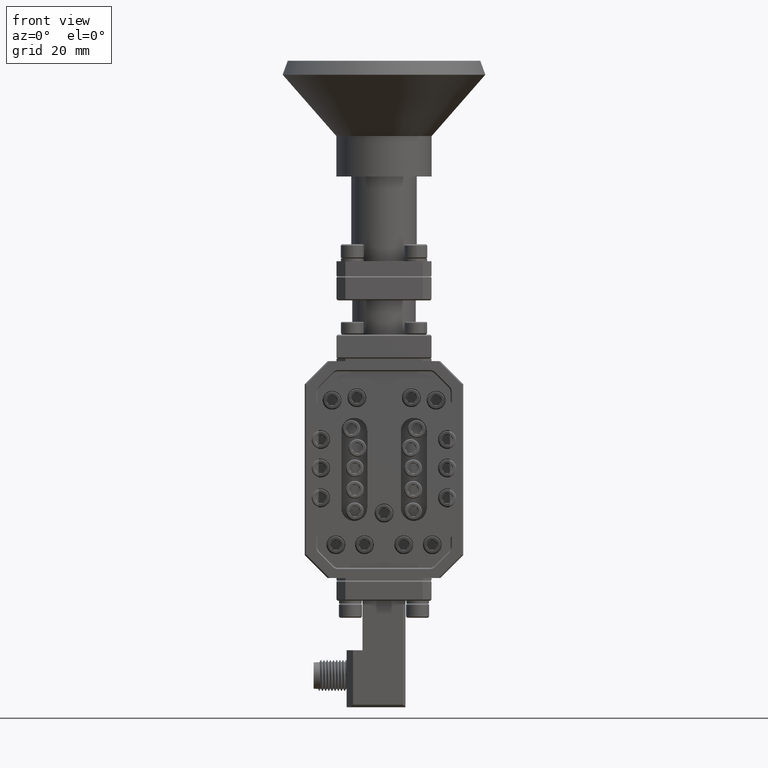
[diagram: clean part render]
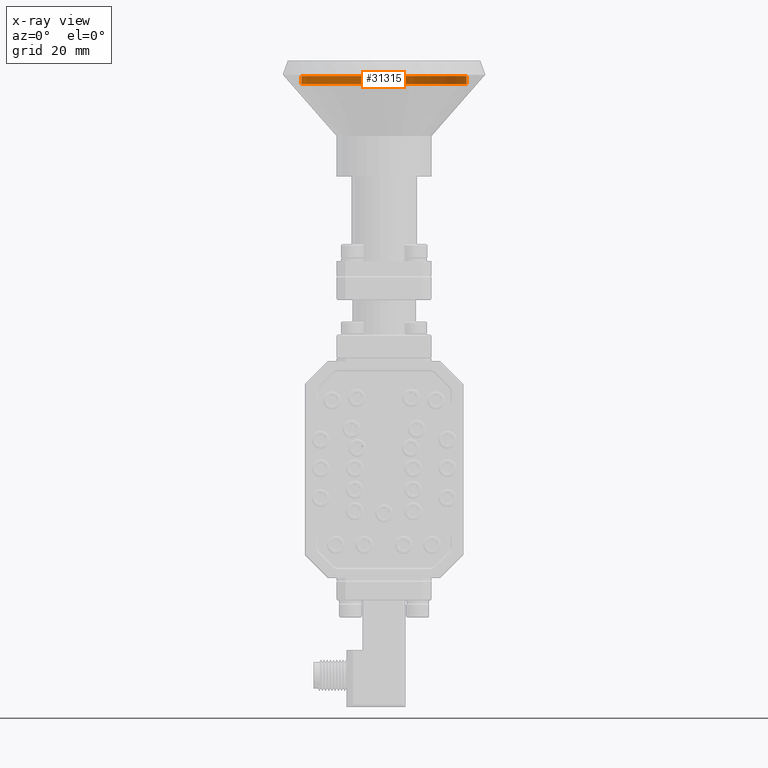
[diagram: x-ray — body ghosted, one internal face saturated and labeled with its STEP entity id]
A machine part, front view, then the same camera in x-ray: the body is ghosted and one INTERNAL B-rep face — a face not visible from any outside direction — is saturated and labeled: STEP entity #31315.
In plain terms, the highlighted cylindrical surface (partial cylindrical patch) has radius 16.5306 mm, axis along (0, 0, 1).
Its self-contained STEP definition (entity closure, byte-faithful):
#1759 = EDGE_CURVE ( 'NONE', #39162, #36241, #5583, .T. ) ;
#4193 = ORIENTED_EDGE ( 'NONE', *, *, #23320, .F. ) ;
#5324 = DIRECTION ( 'NONE',  ( 0.000000000000000000, 0.000000000000000000, 1.000000000000000000 ) ) ;
#5583 = LINE ( 'NONE', #58975, #26751 ) ;
#5765 = ORIENTED_EDGE ( 'NONE', *, *, #24763, .T. ) ;
#6958 = DIRECTION ( 'NONE',  ( 1.000000000000000000, 0.000000000000000000, -1.049400276994855732E-16 ) ) ;
#8186 = EDGE_LOOP ( 'NONE', ( #33963, #54190, #5765, #4193 ) ) ;
#11716 = CARTESIAN_POINT ( 'NONE',  ( 1.934627145451833015E-16, 0.000000000000000000, -0.1212570514218500872 ) ) ;
#12340 = VERTEX_POINT ( 'NONE', #57799 ) ;
#14551 = LINE ( 'NONE', #44055, #22086 ) ;
#19181 = CIRCLE ( 'NONE', #22218, 0.6508117192153302089 ) ;
#19401 = FACE_OUTER_BOUND ( 'NONE', #8186, .T. ) ;
#20074 = CIRCLE ( 'NONE', #33203, 0.6508117192153302089 ) ;
#22086 = VECTOR ( 'NONE', #5324, 39.37007874015748143 ) ;
#22218 = AXIS2_PLACEMENT_3D ( 'NONE', #11716, #31081, #26336 ) ;
#23320 = EDGE_CURVE ( 'NONE', #12340, #56259, #14551, .T. ) ;
#24763 = EDGE_CURVE ( 'NONE', #36241, #56259, #19181, .T. ) ;
#26336 = DIRECTION ( 'NONE',  ( -1.000000000000000000, 0.000000000000000000, 1.311750346243569603E-16 ) ) ;
#26751 = VECTOR ( 'NONE', #44310, 39.37007874015748143 ) ;
#29697 = CARTESIAN_POINT ( 'NONE',  ( -0.6508117192153299868, 7.970144887846400540E-17, -0.1838206156332456709 ) ) ;
#30152 = CARTESIAN_POINT ( 'NONE',  ( 1.858008876797097320E-16, 0.000000000000000000, -0.1838206156332457542 ) ) ;
#30459 = DIRECTION ( 'NONE',  ( 1.224646799147353207E-16, 0.000000000000000000, 1.000000000000000000 ) ) ;
#30466 = DIRECTION ( 'NONE',  ( 1.000000000000000000, 0.000000000000000000, 0.000000000000000000 ) ) ;
#31081 = DIRECTION ( 'NONE',  ( -1.224646799147353207E-16, -0.000000000000000000, -1.000000000000000000 ) ) ;
#31315 = ADVANCED_FACE ( 'NONE', ( #19401 ), #38139, .T. ) ;
#32952 = CARTESIAN_POINT ( 'NONE',  ( -0.6508117192153299868, 7.970144887846400540E-17, -0.1212570514218500040 ) ) ;
#33203 = AXIS2_PLACEMENT_3D ( 'NONE', #30152, #30459, #6958 ) ;
#33963 = ORIENTED_EDGE ( 'NONE', *, *, #37146, .T. ) ;
#36241 = VERTEX_POINT ( 'NONE', #32952 ) ;
#37146 = EDGE_CURVE ( 'NONE', #12340, #39162, #20074, .T. ) ;
#38139 = CYLINDRICAL_SURFACE ( 'NONE', #48005, 0.6508117192153302089 ) ;
#38751 = CARTESIAN_POINT ( 'NONE',  ( 0.000000000000000000, 0.000000000000000000, -5.100039370075059253 ) ) ;
#39162 = VERTEX_POINT ( 'NONE', #29697 ) ;
#43919 = CARTESIAN_POINT ( 'NONE',  ( 0.6508117192153303199, 0.000000000000000000, -0.1212570514218501705 ) ) ;
#44055 = CARTESIAN_POINT ( 'NONE',  ( 0.6508117192153302089, 0.000000000000000000, -5.100039370075059253 ) ) ;
#44310 = DIRECTION ( 'NONE',  ( 0.000000000000000000, 0.000000000000000000, 1.000000000000000000 ) ) ;
#48005 = AXIS2_PLACEMENT_3D ( 'NONE', #38751, #57554, #30466 ) ;
#54190 = ORIENTED_EDGE ( 'NONE', *, *, #1759, .T. ) ;
#56259 = VERTEX_POINT ( 'NONE', #43919 ) ;
#57554 = DIRECTION ( 'NONE',  ( 0.000000000000000000, 0.000000000000000000, 1.000000000000000000 ) ) ;
#57799 = CARTESIAN_POINT ( 'NONE',  ( 0.6508117192153303199, 0.000000000000000000, -0.1838206156332458097 ) ) ;
#58975 = CARTESIAN_POINT ( 'NONE',  ( -0.6508117192153302089, 7.970144887846400540E-17, -5.100039370075059253 ) ) ;